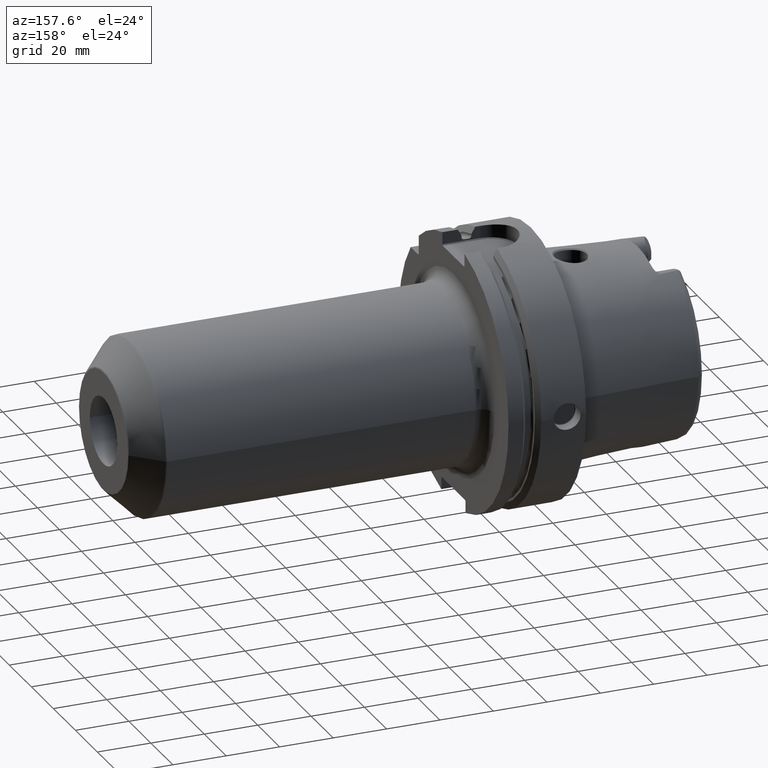
[diagram: clean part render]
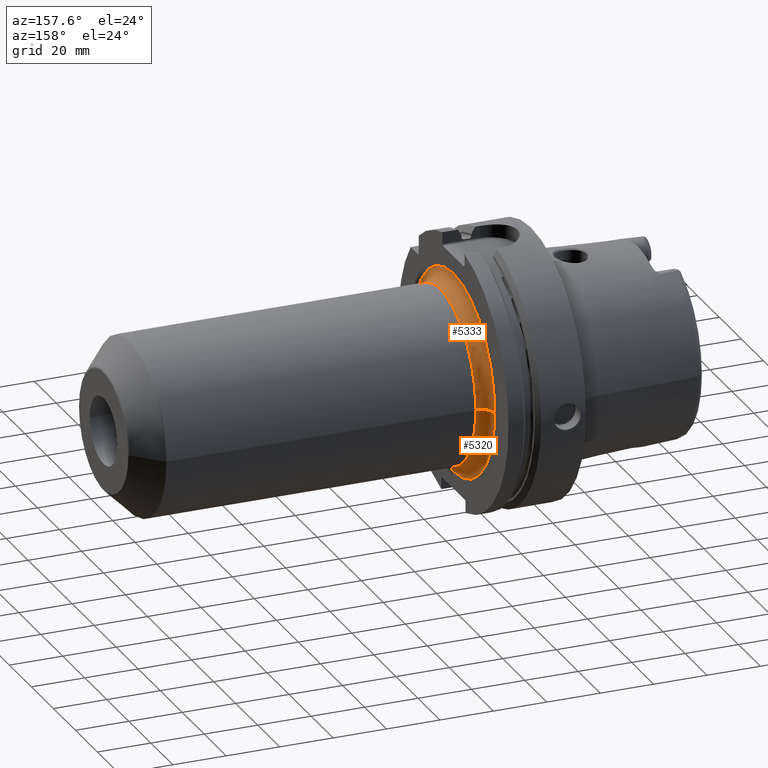
[diagram: same view with one multi-face feature highlighted, each face labeled with its STEP entity id]
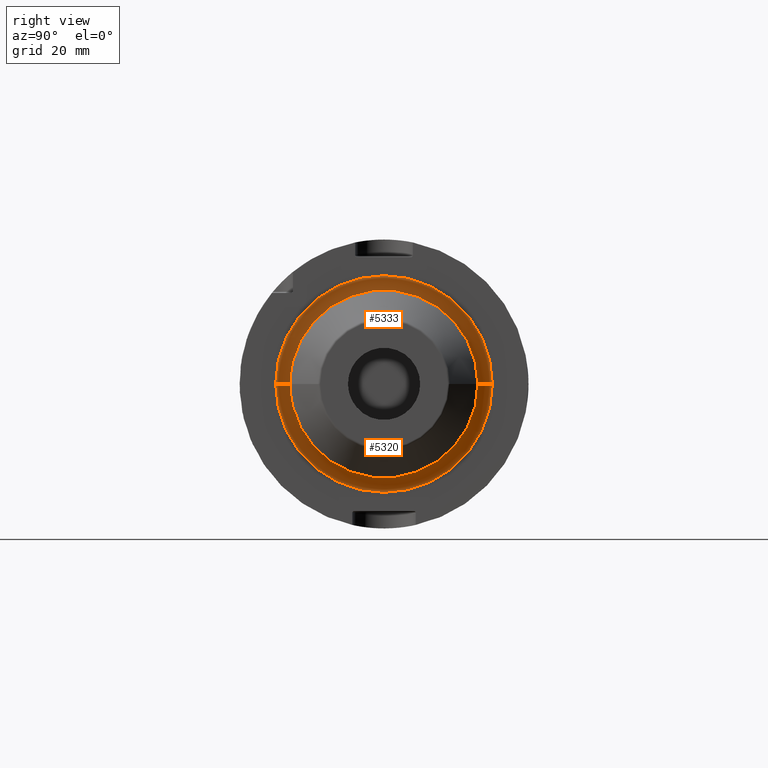
[diagram: same view with one multi-face feature highlighted, each face labeled with its STEP entity id]
A machine part, auxiliary view. The highlighted faces form ONE feature: a constant-radius fillet chain: 2 tangent blend faces with common blend radius 5 mm. The faces share edges in the B-rep.
A second angle (right view) of the same feature is appended — it is thin or edge-on in the first view.
Their STEP definitions:
[1] entity #5333 (Torus):
#1096=CARTESIAN_POINT('',(2.9E1,0.E0,0.E0));
#1097=DIRECTION('',(1.E0,0.E0,0.E0));
#1098=DIRECTION('',(0.E0,1.E0,0.E0));
#1099=AXIS2_PLACEMENT_3D('',#1096,#1097,#1098);
#1810=CARTESIAN_POINT('',(3.4E1,-3.75E1,1.662558979376E-14));
#1811=DIRECTION('',(0.E0,0.E0,-1.E0));
#1812=DIRECTION('',(-1.E0,0.E0,0.E0));
#1813=AXIS2_PLACEMENT_3D('',#1810,#1811,#1812);
#1815=CARTESIAN_POINT('',(3.4E1,3.75E1,-2.230160500716E-14));
#1816=DIRECTION('',(0.E0,0.E0,1.E0));
#1817=DIRECTION('',(-1.E0,0.E0,0.E0));
#1818=AXIS2_PLACEMENT_3D('',#1815,#1816,#1817);
#1853=CARTESIAN_POINT('',(3.4E1,0.E0,0.E0));
#1854=DIRECTION('',(1.E0,0.E0,0.E0));
#1855=DIRECTION('',(0.E0,1.E0,0.E0));
#1856=AXIS2_PLACEMENT_3D('',#1853,#1854,#1855);
#3449=CARTESIAN_POINT('',(2.9E1,-3.75E1,0.E0));
#3450=CARTESIAN_POINT('',(2.9E1,3.75E1,0.E0));
#3451=VERTEX_POINT('',#3449);
#3452=VERTEX_POINT('',#3450);
#3453=CARTESIAN_POINT('',(3.4E1,-3.25E1,0.E0));
#3454=CARTESIAN_POINT('',(3.4E1,3.25E1,0.E0));
#3455=VERTEX_POINT('',#3453);
#3456=VERTEX_POINT('',#3454);
#5321=CARTESIAN_POINT('',(3.4E1,0.E0,0.E0));
#5322=DIRECTION('',(1.E0,0.E0,0.E0));
#5323=DIRECTION('',(0.E0,9.999972018240E-1,-2.365659331949E-3));
#5324=AXIS2_PLACEMENT_3D('',#5321,#5322,#5323);
#5325=TOROIDAL_SURFACE('',#5324,3.75E1,5.E0);
#5326=ORIENTED_EDGE('',*,*,#4588,.F.);
#5327=ORIENTED_EDGE('',*,*,#5316,.T.);
#5329=ORIENTED_EDGE('',*,*,#5328,.T.);
#5330=ORIENTED_EDGE('',*,*,#5312,.F.);
#5331=EDGE_LOOP('',(#5326,#5327,#5329,#5330));
#5332=FACE_OUTER_BOUND('',#5331,.F.);
#5333=ADVANCED_FACE('',(#5332),#5325,.F.);
#1100=CIRCLE('',#1099,3.75E1);
#1814=CIRCLE('',#1813,5.E0);
#1819=CIRCLE('',#1818,5.E0);
#1857=CIRCLE('',#1856,3.25E1);
#4588=EDGE_CURVE('',#3452,#3451,#1100,.T.);
#5312=EDGE_CURVE('',#3451,#3455,#1814,.T.);
#5316=EDGE_CURVE('',#3452,#3456,#1819,.T.);
#5328=EDGE_CURVE('',#3456,#3455,#1857,.T.);
[2] entity #5320 (Torus):
#1091=CARTESIAN_POINT('',(2.9E1,0.E0,0.E0));
#1092=DIRECTION('',(1.E0,0.E0,0.E0));
#1093=DIRECTION('',(0.E0,-1.E0,0.E0));
#1094=AXIS2_PLACEMENT_3D('',#1091,#1092,#1093);
#1810=CARTESIAN_POINT('',(3.4E1,-3.75E1,1.662558979376E-14));
#1811=DIRECTION('',(0.E0,0.E0,-1.E0));
#1812=DIRECTION('',(-1.E0,0.E0,0.E0));
#1813=AXIS2_PLACEMENT_3D('',#1810,#1811,#1812);
#1815=CARTESIAN_POINT('',(3.4E1,3.75E1,-2.230160500716E-14));
#1816=DIRECTION('',(0.E0,0.E0,1.E0));
#1817=DIRECTION('',(-1.E0,0.E0,0.E0));
#1818=AXIS2_PLACEMENT_3D('',#1815,#1816,#1817);
#1987=CARTESIAN_POINT('',(3.4E1,0.E0,0.E0));
#1988=DIRECTION('',(1.E0,0.E0,0.E0));
#1989=DIRECTION('',(0.E0,-1.E0,0.E0));
#1990=AXIS2_PLACEMENT_3D('',#1987,#1988,#1989);
#3449=CARTESIAN_POINT('',(2.9E1,-3.75E1,0.E0));
#3450=CARTESIAN_POINT('',(2.9E1,3.75E1,0.E0));
#3451=VERTEX_POINT('',#3449);
#3452=VERTEX_POINT('',#3450);
#3453=CARTESIAN_POINT('',(3.4E1,-3.25E1,0.E0));
#3454=CARTESIAN_POINT('',(3.4E1,3.25E1,0.E0));
#3455=VERTEX_POINT('',#3453);
#3456=VERTEX_POINT('',#3454);
#5306=CARTESIAN_POINT('',(3.4E1,0.E0,0.E0));
#5307=DIRECTION('',(1.E0,0.E0,0.E0));
#5308=DIRECTION('',(0.E0,-9.999972018240E-1,2.365659331948E-3));
#5309=AXIS2_PLACEMENT_3D('',#5306,#5307,#5308);
#5310=TOROIDAL_SURFACE('',#5309,3.75E1,5.E0);
#5311=ORIENTED_EDGE('',*,*,#4586,.F.);
#5313=ORIENTED_EDGE('',*,*,#5312,.T.);
#5315=ORIENTED_EDGE('',*,*,#5314,.T.);
#5317=ORIENTED_EDGE('',*,*,#5316,.F.);
#5318=EDGE_LOOP('',(#5311,#5313,#5315,#5317));
#5319=FACE_OUTER_BOUND('',#5318,.F.);
#5320=ADVANCED_FACE('',(#5319),#5310,.F.);
#1095=CIRCLE('',#1094,3.75E1);
#1814=CIRCLE('',#1813,5.E0);
#1819=CIRCLE('',#1818,5.E0);
#1991=CIRCLE('',#1990,3.25E1);
#4586=EDGE_CURVE('',#3451,#3452,#1095,.T.);
#5312=EDGE_CURVE('',#3451,#3455,#1814,.T.);
#5314=EDGE_CURVE('',#3455,#3456,#1991,.T.);
#5316=EDGE_CURVE('',#3452,#3456,#1819,.T.);